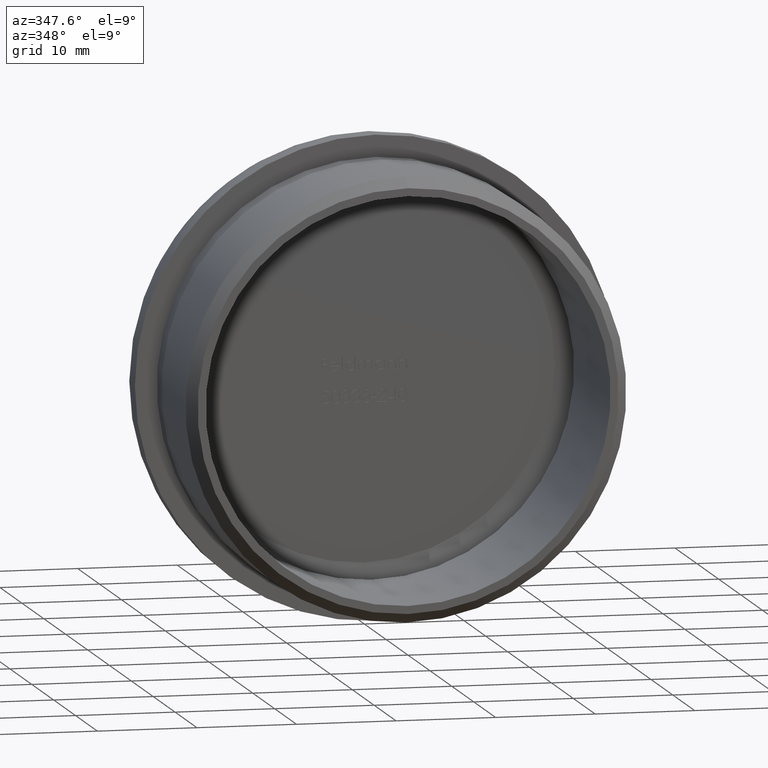
[diagram: clean part render]
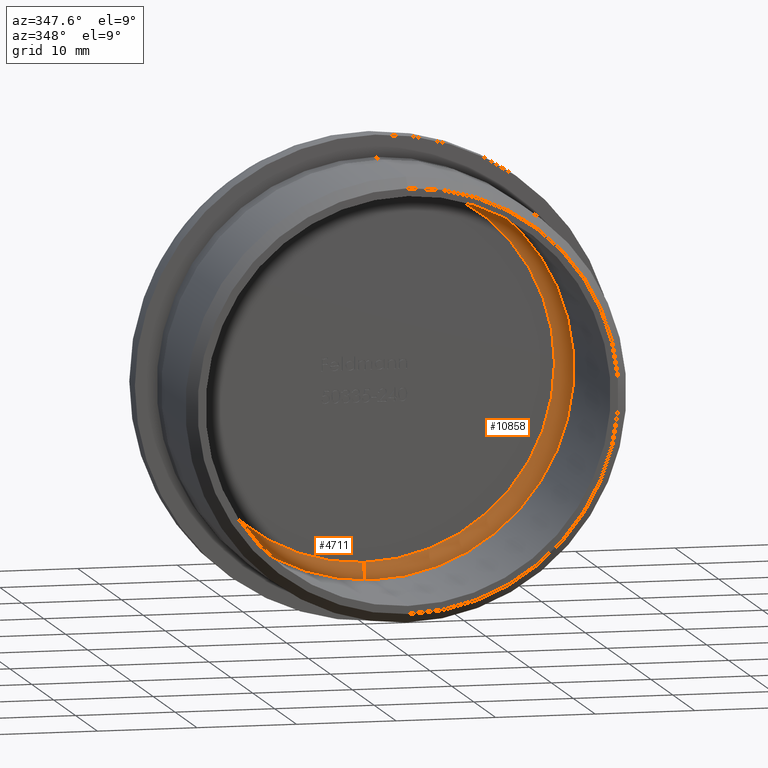
[diagram: same view with one multi-face feature highlighted, each face labeled with its STEP entity id]
A machine part, auxiliary view. The highlighted faces form ONE feature: a constant-radius fillet chain: 2 tangent blend faces with common blend radius 3.2 mm. The faces share edges in the B-rep.
Their STEP definitions:
[1] entity #10858 (Torus):
#126 = CARTESIAN_POINT ( 'NONE',  ( 0.0000000000000000000, 16.99999999999999600, 0.0000000000000000000 ) ) ;
#176 = DIRECTION ( 'NONE',  ( 0.0000000000000000000, 0.0000000000000000000, -1.000000000000000000 ) ) ;
#847 = CARTESIAN_POINT ( 'NONE',  ( 0.0000000000000000000, 20.19999999999999900, 0.0000000000000000000 ) ) ;
#1087 = CARTESIAN_POINT ( 'NONE',  ( 2.736319442916313800E-015, 16.80000000000000100, 22.34374388453427000 ) ) ;
#1121 = VERTEX_POINT ( 'NONE', #1087 ) ;
#1270 = EDGE_CURVE ( 'NONE', #6909, #1994, #6194, .T. ) ;
#1447 = ORIENTED_EDGE ( 'NONE', *, *, #1270, .F. ) ;
#1485 = ORIENTED_EDGE ( 'NONE', *, *, #10041, .T. ) ;
#1771 = ORIENTED_EDGE ( 'NONE', *, *, #7024, .T. ) ;
#1960 = FACE_OUTER_BOUND ( 'NONE', #7853, .T. ) ;
#1994 = VERTEX_POINT ( 'NONE', #6503 ) ;
#2039 = DIRECTION ( 'NONE',  ( -1.000000000000000000, 0.0000000000000000000, 0.0000000000000000000 ) ) ;
#3207 = CIRCLE ( 'NONE', #11019, 3.200000000000001500 ) ;
#4075 = DIRECTION ( 'NONE',  ( -0.0000000000000000000, -1.000000000000000000, -0.0000000000000000000 ) ) ;
#4389 = VERTEX_POINT ( 'NONE', #8610 ) ;
#5017 = CIRCLE ( 'NONE', #10819, 22.34374388453427000 ) ;
#5149 = ORIENTED_EDGE ( 'NONE', *, *, #13130, .F. ) ;
#6194 = CIRCLE ( 'NONE', #12554, 19.15000000000000200 ) ;
#6233 = DIRECTION ( 'NONE',  ( 0.0000000000000000000, 0.0000000000000000000, 1.000000000000000000 ) ) ;
#6503 = CARTESIAN_POINT ( 'NONE',  ( 2.540759031641747800E-015, 20.19999999999999900, 19.15000000000000200 ) ) ;
#6909 = VERTEX_POINT ( 'NONE', #10530 ) ;
#7024 = EDGE_CURVE ( 'NONE', #6909, #4389, #9107, .T. ) ;
#7504 = DIRECTION ( 'NONE',  ( 0.0000000000000000000, 0.0000000000000000000, -1.000000000000000000 ) ) ;
#7853 = EDGE_LOOP ( 'NONE', ( #5149, #1447, #1771, #1485 ) ) ;
#8610 = CARTESIAN_POINT ( 'NONE',  ( 0.0000000000000000000, 16.80000000000000100, -22.34374388453427000 ) ) ;
#8875 = AXIS2_PLACEMENT_3D ( 'NONE', #126, #12310, #176 ) ;
#9004 = DIRECTION ( 'NONE',  ( 0.0000000000000000000, 0.0000000000000000000, -1.000000000000000000 ) ) ;
#9107 = CIRCLE ( 'NONE', #9420, 3.200000000000001500 ) ;
#9420 = AXIS2_PLACEMENT_3D ( 'NONE', #9570, #2039, #6233 ) ;
#9570 = CARTESIAN_POINT ( 'NONE',  ( 0.0000000000000000000, 16.99999999999999600, -19.15000000000000200 ) ) ;
#9730 = CARTESIAN_POINT ( 'NONE',  ( 0.0000000000000000000, 16.80000000000000100, 0.0000000000000000000 ) ) ;
#9866 = DIRECTION ( 'NONE',  ( -1.224646799147353200E-016, 0.0000000000000000000, -1.000000000000000000 ) ) ;
#10041 = EDGE_CURVE ( 'NONE', #4389, #1121, #5017, .T. ) ;
#10530 = CARTESIAN_POINT ( 'NONE',  ( 0.0000000000000000000, 20.19999999999999900, -19.15000000000000200 ) ) ;
#10819 = AXIS2_PLACEMENT_3D ( 'NONE', #9730, #12234, #9004 ) ;
#10858 = ADVANCED_FACE ( 'NONE', ( #1960 ), #10885, .F. ) ;
#10885 = TOROIDAL_SURFACE ( 'NONE', #8875, 19.15000000000000200, 3.200000000000001500 ) ;
#10893 = DIRECTION ( 'NONE',  ( 1.000000000000000000, 0.0000000000000000000, -1.224646799147353200E-016 ) ) ;
#11019 = AXIS2_PLACEMENT_3D ( 'NONE', #12006, #10893, #9866 ) ;
#12006 = CARTESIAN_POINT ( 'NONE',  ( 2.345198620367181800E-015, 16.99999999999999600, 19.15000000000000200 ) ) ;
#12234 = DIRECTION ( 'NONE',  ( -0.0000000000000000000, -1.000000000000000000, -0.0000000000000000000 ) ) ;
#12310 = DIRECTION ( 'NONE',  ( -0.0000000000000000000, -1.000000000000000000, -0.0000000000000000000 ) ) ;
#12554 = AXIS2_PLACEMENT_3D ( 'NONE', #847, #4075, #7504 ) ;
#13130 = EDGE_CURVE ( 'NONE', #1994, #1121, #3207, .T. ) ;
[2] entity #4711 (Torus):
#243 = CARTESIAN_POINT ( 'NONE',  ( 0.0000000000000000000, 16.99999999999999600, 0.0000000000000000000 ) ) ;
#322 = CIRCLE ( 'NONE', #3367, 22.34374388453427000 ) ;
#1087 = CARTESIAN_POINT ( 'NONE',  ( 2.736319442916313800E-015, 16.80000000000000100, 22.34374388453427000 ) ) ;
#1121 = VERTEX_POINT ( 'NONE', #1087 ) ;
#1994 = VERTEX_POINT ( 'NONE', #6503 ) ;
#2039 = DIRECTION ( 'NONE',  ( -1.000000000000000000, 0.0000000000000000000, 0.0000000000000000000 ) ) ;
#2355 = ORIENTED_EDGE ( 'NONE', *, *, #5503, .F. ) ;
#2458 = AXIS2_PLACEMENT_3D ( 'NONE', #243, #10152, #6735 ) ;
#2957 = FACE_OUTER_BOUND ( 'NONE', #7851, .T. ) ;
#3207 = CIRCLE ( 'NONE', #11019, 3.200000000000001500 ) ;
#3367 = AXIS2_PLACEMENT_3D ( 'NONE', #8397, #6304, #4044 ) ;
#3759 = CARTESIAN_POINT ( 'NONE',  ( 0.0000000000000000000, 20.19999999999999900, 0.0000000000000000000 ) ) ;
#4044 = DIRECTION ( 'NONE',  ( 0.0000000000000000000, 0.0000000000000000000, -1.000000000000000000 ) ) ;
#4117 = CIRCLE ( 'NONE', #6385, 19.15000000000000200 ) ;
#4389 = VERTEX_POINT ( 'NONE', #8610 ) ;
#4650 = TOROIDAL_SURFACE ( 'NONE', #2458, 19.15000000000000200, 3.200000000000001500 ) ;
#4711 = ADVANCED_FACE ( 'NONE', ( #2957 ), #4650, .F. ) ;
#5503 = EDGE_CURVE ( 'NONE', #1994, #6909, #4117, .T. ) ;
#6233 = DIRECTION ( 'NONE',  ( 0.0000000000000000000, 0.0000000000000000000, 1.000000000000000000 ) ) ;
#6304 = DIRECTION ( 'NONE',  ( -0.0000000000000000000, -1.000000000000000000, -0.0000000000000000000 ) ) ;
#6385 = AXIS2_PLACEMENT_3D ( 'NONE', #3759, #10310, #11380 ) ;
#6503 = CARTESIAN_POINT ( 'NONE',  ( 2.540759031641747800E-015, 20.19999999999999900, 19.15000000000000200 ) ) ;
#6735 = DIRECTION ( 'NONE',  ( 0.0000000000000000000, 0.0000000000000000000, -1.000000000000000000 ) ) ;
#6909 = VERTEX_POINT ( 'NONE', #10530 ) ;
#7024 = EDGE_CURVE ( 'NONE', #6909, #4389, #9107, .T. ) ;
#7851 = EDGE_LOOP ( 'NONE', ( #2355, #13693, #9987, #10243 ) ) ;
#8397 = CARTESIAN_POINT ( 'NONE',  ( 0.0000000000000000000, 16.80000000000000100, 0.0000000000000000000 ) ) ;
#8610 = CARTESIAN_POINT ( 'NONE',  ( 0.0000000000000000000, 16.80000000000000100, -22.34374388453427000 ) ) ;
#9107 = CIRCLE ( 'NONE', #9420, 3.200000000000001500 ) ;
#9420 = AXIS2_PLACEMENT_3D ( 'NONE', #9570, #2039, #6233 ) ;
#9570 = CARTESIAN_POINT ( 'NONE',  ( 0.0000000000000000000, 16.99999999999999600, -19.15000000000000200 ) ) ;
#9866 = DIRECTION ( 'NONE',  ( -1.224646799147353200E-016, 0.0000000000000000000, -1.000000000000000000 ) ) ;
#9987 = ORIENTED_EDGE ( 'NONE', *, *, #11835, .T. ) ;
#10152 = DIRECTION ( 'NONE',  ( -0.0000000000000000000, -1.000000000000000000, -0.0000000000000000000 ) ) ;
#10243 = ORIENTED_EDGE ( 'NONE', *, *, #7024, .F. ) ;
#10310 = DIRECTION ( 'NONE',  ( -0.0000000000000000000, -1.000000000000000000, -0.0000000000000000000 ) ) ;
#10530 = CARTESIAN_POINT ( 'NONE',  ( 0.0000000000000000000, 20.19999999999999900, -19.15000000000000200 ) ) ;
#10893 = DIRECTION ( 'NONE',  ( 1.000000000000000000, 0.0000000000000000000, -1.224646799147353200E-016 ) ) ;
#11019 = AXIS2_PLACEMENT_3D ( 'NONE', #12006, #10893, #9866 ) ;
#11380 = DIRECTION ( 'NONE',  ( 0.0000000000000000000, 0.0000000000000000000, -1.000000000000000000 ) ) ;
#11835 = EDGE_CURVE ( 'NONE', #1121, #4389, #322, .T. ) ;
#12006 = CARTESIAN_POINT ( 'NONE',  ( 2.345198620367181800E-015, 16.99999999999999600, 19.15000000000000200 ) ) ;
#13130 = EDGE_CURVE ( 'NONE', #1994, #1121, #3207, .T. ) ;
#13693 = ORIENTED_EDGE ( 'NONE', *, *, #13130, .T. ) ;